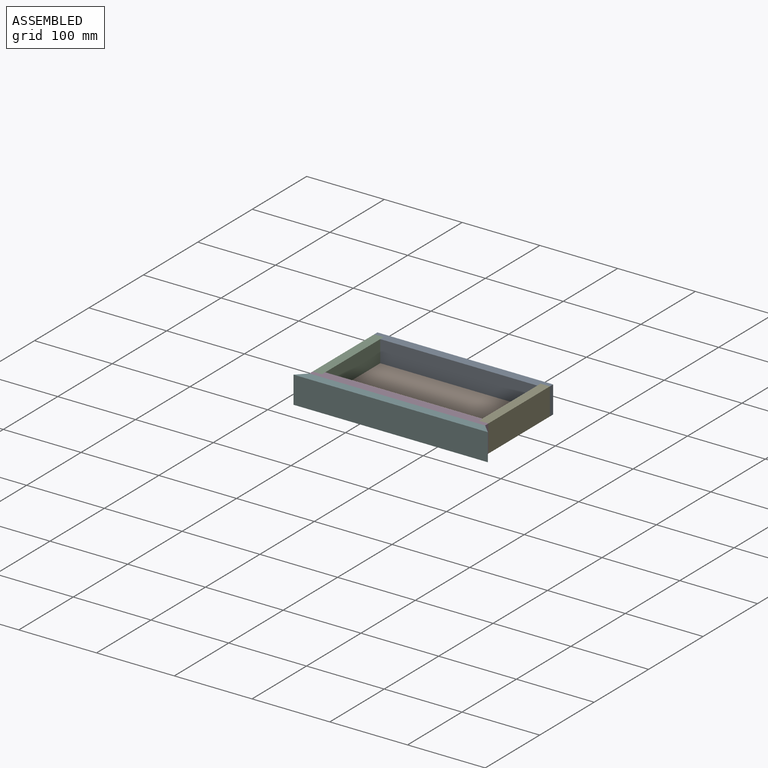
[diagram: assembled view]
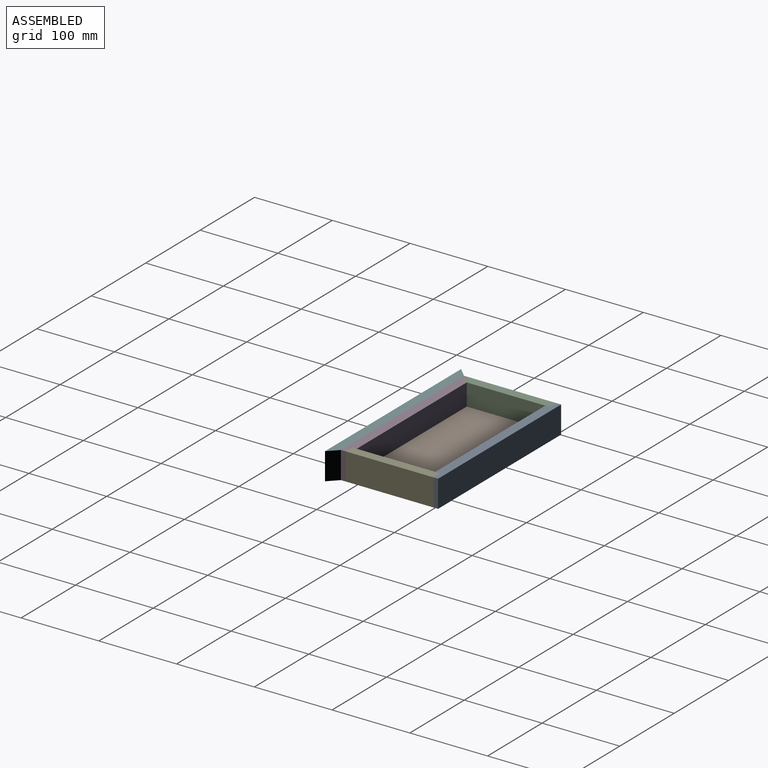
[diagram: assembled view, second angle]
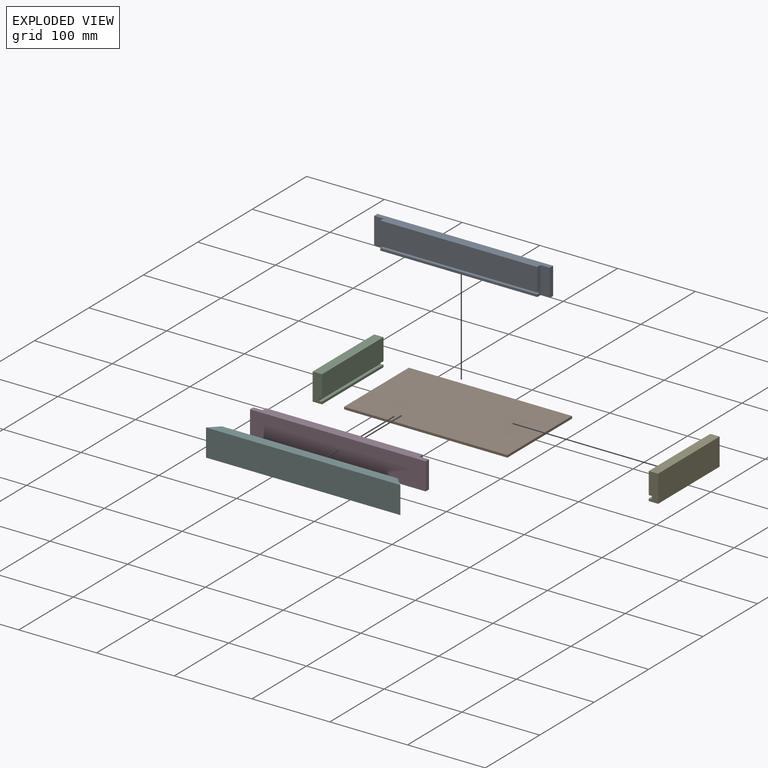
[diagram: exploded view]
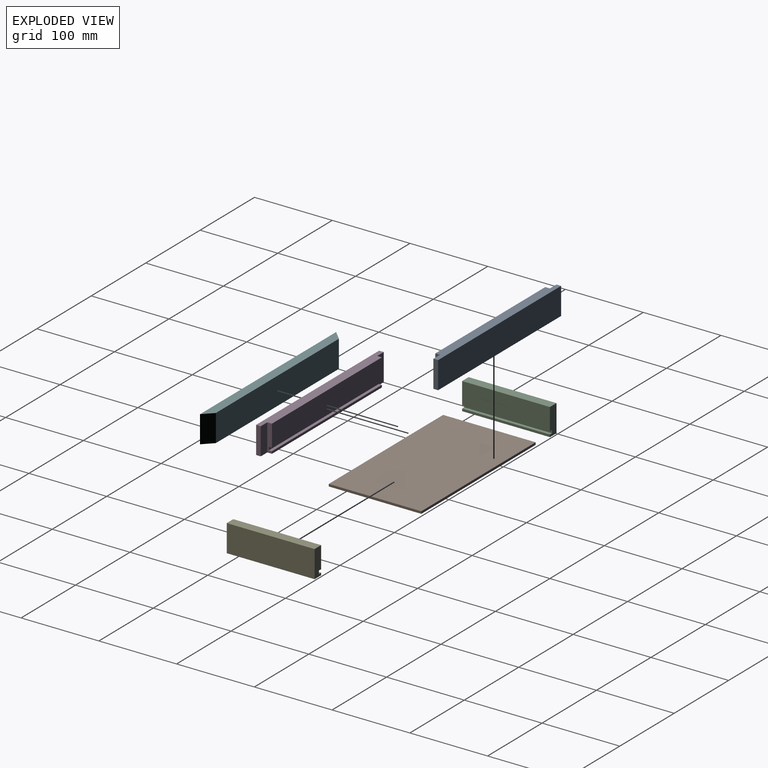
[diagram: exploded view, second angle]
ASSEMBLY  parts=6 mates=5
PART A: 14 faces, bbox 226x12x35 mm
  f0: plane 202x28mm, normal (0,1,0), area 5656mm2, adj f1,f2,f3,f12
  f1: plane 35x6mm, normal (-1,0,0), area 194mm2, adj f0,f3,f5,f6,f10,f11,f12,f13
  f2: plane 35x6mm, normal (1,0,0), area 194mm2, adj f0,f3,f5,f6,f9,f11,f12,f13
  f3: plane 226x12mm, normal (0,0,1), area 2568mm2, adj f0,f1,f2,f4,f7,f8,f9,f10
  f4: plane 35x6mm, normal (-1,0,0), area 210mm2, adj f3,f6,f8,f10
  f5: plane 202x3mm, normal (0,1,0), area 606mm2, adj f1,f2,f6,f11
  f6: plane 226x12mm, normal (0,0,-1), area 2568mm2, adj f1,f2,f4,f5,f7,f8,f9,f10
  f7: plane 35x6mm, normal (1,0,0), area 210mm2, adj f3,f6,f8,f9
  f8: plane 226x35mm, normal (0,-1,0), area 7910mm2, adj f3,f4,f6,f7
  f9: plane 35x12mm, normal (0,1,0), area 420mm2, adj f2,f3,f6,f7
  f10: plane 35x12mm, normal (0,1,0), area 420mm2, adj f1,f3,f4,f6
  f11: plane 202x4mm, normal (0,0,1), area 808mm2, adj f1,f2,f5,f13
  f12: plane 202x4mm, normal (0,0,-1), area 808mm2, adj f0,f1,f2,f13
  f13: plane 202x4mm, normal (0,1,0), area 808mm2, adj f1,f2,f11,f12
PART B: 6 faces, bbox 210x119x3 mm
  f0: plane 119x3mm, normal (-1,0,0), area 357mm2, adj f1,f3,f4,f5
  f1: plane 210x3mm, normal (0,-1,0), area 630mm2, adj f0,f2,f4,f5
  f2: plane 119x3mm, normal (1,0,0), area 357mm2, adj f1,f3,f4,f5
  f3: plane 210x3mm, normal (0,1,0), area 630mm2, adj f0,f2,f4,f5
  f4: plane 210x119mm, normal (0,0,1), area 24990mm2, adj f0,f1,f2,f3
  f5: plane 210x119mm, normal (0,0,-1), area 24990mm2, adj f0,f1,f2,f3
PART C: 10 faces, bbox 12x113x35 mm
  f0: plane 113x3mm, normal (1,0,0), area 339mm2, adj f1,f3,f6,f8
  f1: plane 35x12mm, normal (0,-1,0), area 404mm2, adj f0,f2,f4,f5,f6,f7,f8,f9
  f2: plane 113x28mm, normal (1,0,0), area 3164mm2, adj f1,f3,f5,f7
  f3: plane 35x12mm, normal (0,1,0), area 404mm2, adj f0,f2,f4,f5,f6,f7,f8,f9
  f4: plane 113x35mm, normal (-1,0,0), area 3955mm2, adj f1,f3,f5,f6
  f5: plane 113x12mm, normal (0,0,1), area 1356mm2, adj f1,f2,f3,f4
  f6: plane 113x12mm, normal (0,0,-1), area 1356mm2, adj f0,f1,f3,f4
  f7: plane 113x4mm, normal (0,0,-1), area 452mm2, adj f1,f2,f3,f9
  f8: plane 113x4mm, normal (0,0,1), area 452mm2, adj f0,f1,f3,f9
  f9: plane 113x4mm, normal (1,0,0), area 452mm2, adj f1,f3,f7,f8
PART D: same geometry as A
PART E: same geometry as C
PART F: 6 faces, bbox 250x12x35 mm
  f0: plane 250x12mm, normal (0,0,1), area 2856mm2, adj f2,f3,f4,f5
  f1: plane 250x12mm, normal (0,0,-1), area 2856mm2, adj f2,f3,f4,f5
  f2: plane 250x35mm, normal (0,-1,0), area 8750mm2, adj f0,f1,f4,f5
  f3: plane 226x35mm, normal (0,1,0), area 7910mm2, adj f0,f1,f4,f5
  f4: plane 35x12mm, normal (0.71,0.71,0), area 594mm2, adj f0,f1,f2,f3
  f5: plane 35x12mm, normal (-0.71,0.71,0), area 594mm2, adj f0,f1,f2,f3
PLACE A rot(axis=(0,0,-1),180deg) t=(5.64,57.34,-16.53)mm
PLACE B t=(-99.36,-52.66,-13.03)mm
PLACE C t=(-95.36,-49.66,-16.53)mm
PLACE D t=(5.64,-43.66,-16.53)mm
PLACE E rot(axis=(0,0,-1),180deg) t=(106.64,63.34,-16.53)mm
PLACE F t=(17.64,-55.66,18.47)mm
MATE fastened F.f3 <-> D.f8  axis (0,1,0) through (5.64,-55.66,0.97)mm
MATE fastened B.f2 <-> E.f9  axis (1,0,0) through (110.64,6.84,-11.53)mm
MATE fastened E.f5 <-> D.f3  axis (0,0,1) through (106.64,-49.66,18.47)mm
MATE fastened A.f3 <-> C.f5  axis (0,0,1) through (-95.36,63.34,18.47)mm
MATE fastened C.f5 <-> D.f3  axis (0,0,1) through (-95.36,-49.66,18.47)mm
